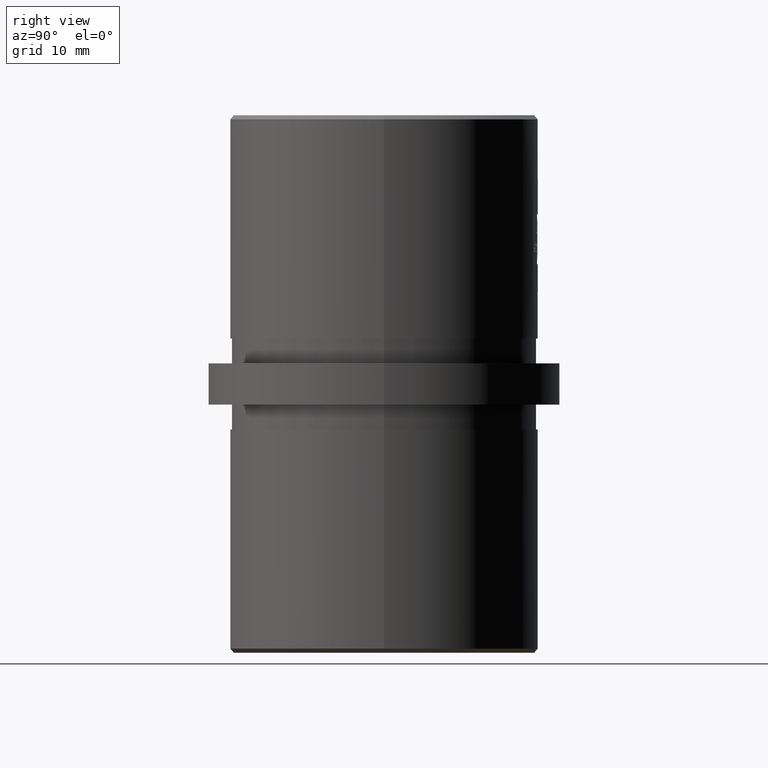
[diagram: clean part render]
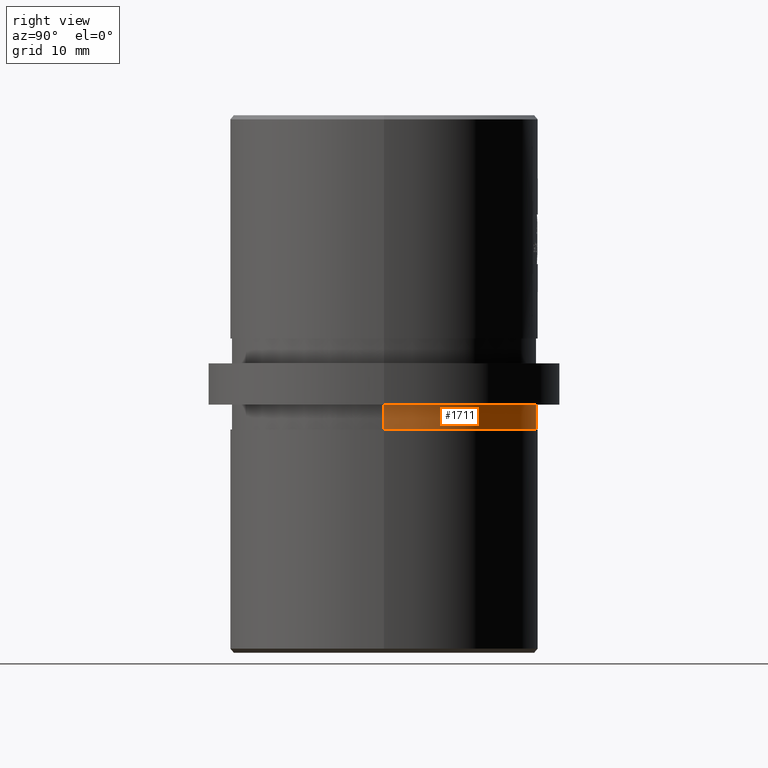
[diagram: same view with one face highlighted and labeled with its STEP entity id]
A machine part, right view. The second image highlights one B-rep face of the part: STEP entity #1711.
In plain terms, the highlighted cylindrical surface (partial cylindrical patch) has radius 18.45 mm, axis along (-0, -0, 1).
Its self-contained STEP definition (entity closure, byte-faithful):
#1024 = VECTOR ( 'NONE', #1096, 1000.000000000000000 ) ;
#1096 = DIRECTION ( 'NONE',  ( -0.0000000000000000000, -0.0000000000000000000, 1.000000000000000000 ) ) ;
#1311 = CARTESIAN_POINT ( 'NONE',  ( -18.45000000000000300, 0.0000000000000000000, -5.500000000000000000 ) ) ;
#1626 = CIRCLE ( 'NONE', #6951, 18.45000000000000300 ) ;
#1711 = ADVANCED_FACE ( 'NONE', ( #13089 ), #7253, .T. ) ;
#2107 = ORIENTED_EDGE ( 'NONE', *, *, #9214, .T. ) ;
#2717 = DIRECTION ( 'NONE',  ( 1.000000000000000000, 0.0000000000000000000, 0.0000000000000000000 ) ) ;
#2739 = EDGE_CURVE ( 'NONE', #8826, #18285, #11094, .T. ) ;
#2988 = DIRECTION ( 'NONE',  ( 1.000000000000000000, 0.0000000000000000000, 0.0000000000000000000 ) ) ;
#3413 = EDGE_CURVE ( 'NONE', #5164, #8826, #5488, .T. ) ;
#3465 = ORIENTED_EDGE ( 'NONE', *, *, #13879, .T. ) ;
#5164 = VERTEX_POINT ( 'NONE', #18658 ) ;
#5488 = LINE ( 'NONE', #7645, #1024 ) ;
#6101 = AXIS2_PLACEMENT_3D ( 'NONE', #9965, #8120, #20149 ) ;
#6951 = AXIS2_PLACEMENT_3D ( 'NONE', #18233, #19935, #2717 ) ;
#7253 = CYLINDRICAL_SURFACE ( 'NONE', #6101, 18.45000000000000300 ) ;
#7645 = CARTESIAN_POINT ( 'NONE',  ( 18.45000000000000300, -2.259473344426867100E-015, -5.500000000000000000 ) ) ;
#8120 = DIRECTION ( 'NONE',  ( -0.0000000000000000000, -0.0000000000000000000, 1.000000000000000000 ) ) ;
#8179 = DIRECTION ( 'NONE',  ( -0.0000000000000000000, -0.0000000000000000000, 1.000000000000000000 ) ) ;
#8600 = VECTOR ( 'NONE', #16409, 1000.000000000000000 ) ;
#8826 = VERTEX_POINT ( 'NONE', #15910 ) ;
#9214 = EDGE_CURVE ( 'NONE', #20682, #18285, #9362, .T. ) ;
#9362 = LINE ( 'NONE', #1311, #8600 ) ;
#9965 = CARTESIAN_POINT ( 'NONE',  ( 0.0000000000000000000, 0.0000000000000000000, -5.500000000000000000 ) ) ;
#10376 = ORIENTED_EDGE ( 'NONE', *, *, #3413, .F. ) ;
#11094 = CIRCLE ( 'NONE', #20486, 18.45000000000000300 ) ;
#11590 = CARTESIAN_POINT ( 'NONE',  ( -18.45000000000000300, 0.0000000000000000000, -2.500000000000000000 ) ) ;
#12050 = ORIENTED_EDGE ( 'NONE', *, *, #2739, .F. ) ;
#13089 = FACE_OUTER_BOUND ( 'NONE', #18874, .T. ) ;
#13879 = EDGE_CURVE ( 'NONE', #5164, #20682, #1626, .T. ) ;
#15910 = CARTESIAN_POINT ( 'NONE',  ( 18.45000000000000300, -2.259473344426867100E-015, -2.500000000000000000 ) ) ;
#16409 = DIRECTION ( 'NONE',  ( -0.0000000000000000000, -0.0000000000000000000, 1.000000000000000000 ) ) ;
#18233 = CARTESIAN_POINT ( 'NONE',  ( 0.0000000000000000000, 0.0000000000000000000, -5.500000000000000000 ) ) ;
#18285 = VERTEX_POINT ( 'NONE', #11590 ) ;
#18658 = CARTESIAN_POINT ( 'NONE',  ( 18.45000000000000300, -2.259473344426867100E-015, -5.500000000000000000 ) ) ;
#18874 = EDGE_LOOP ( 'NONE', ( #10376, #3465, #2107, #12050 ) ) ;
#19693 = CARTESIAN_POINT ( 'NONE',  ( -18.45000000000000300, 0.0000000000000000000, -5.500000000000000000 ) ) ;
#19935 = DIRECTION ( 'NONE',  ( -0.0000000000000000000, -0.0000000000000000000, 1.000000000000000000 ) ) ;
#20149 = DIRECTION ( 'NONE',  ( -1.000000000000000000, 0.0000000000000000000, 0.0000000000000000000 ) ) ;
#20486 = AXIS2_PLACEMENT_3D ( 'NONE', #21882, #8179, #2988 ) ;
#20682 = VERTEX_POINT ( 'NONE', #19693 ) ;
#21882 = CARTESIAN_POINT ( 'NONE',  ( 0.0000000000000000000, 0.0000000000000000000, -2.500000000000000000 ) ) ;